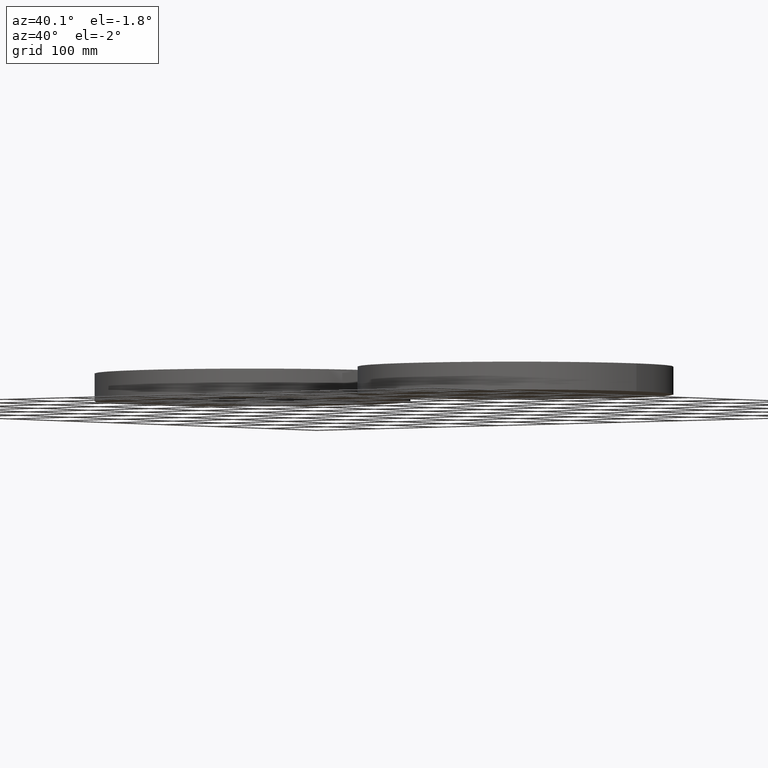
[diagram: clean part render]
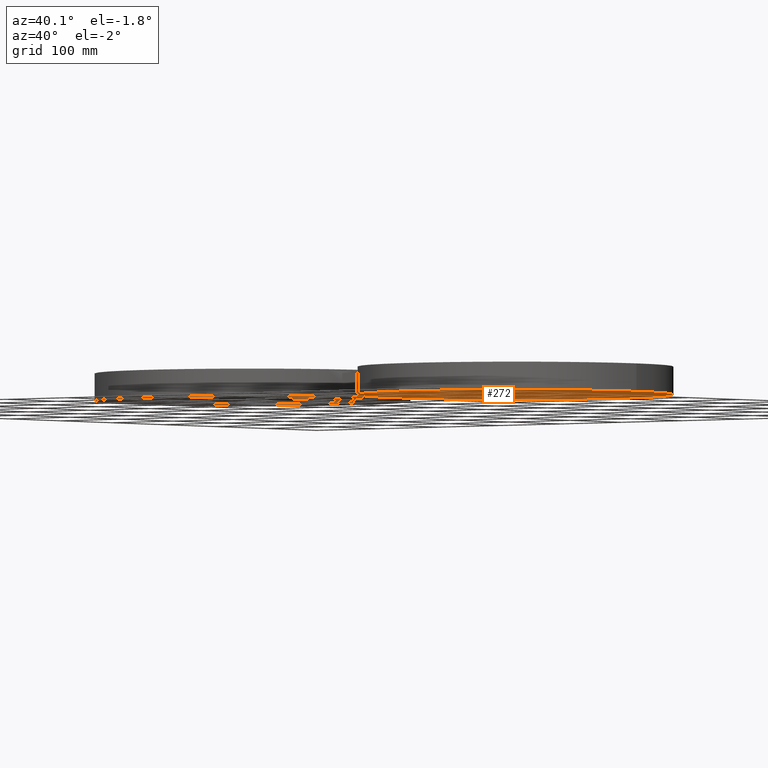
[diagram: same view with one face highlighted and labeled with its STEP entity id]
A machine part, auxiliary view. The second image highlights one B-rep face of the part: STEP entity #272.
In plain terms, the highlighted planar face has unit normal (0, 0, 1).
Its self-contained STEP definition (entity closure, byte-faithful):
#252=AXIS2_PLACEMENT_3D('Plane Axis2P3D',#249,#250,#251) ;
#256=AXIS2_PLACEMENT_3D('Circle Axis2P3D',#254,#255,$) ;
#265=AXIS2_PLACEMENT_3D('Circle Axis2P3D',#263,#264,$) ;
#249=CARTESIAN_POINT('Axis2P3D Location',(0.,0.,-0.690000000003)) ;
#254=CARTESIAN_POINT('Axis2P3D Location',(17.0000000001,2.08189955856E-015,-0.690000000003)) ;
#258=CARTESIAN_POINT('Vertex',(24.8100000001,1.69001258283E-016,-0.690000000003)) ;
#260=CARTESIAN_POINT('Vertex',(9.19000000004,3.0383487087E-015,-0.690000000003)) ;
#263=CARTESIAN_POINT('Axis2P3D Location',(17.0000000001,2.08189955856E-015,-0.690000000003)) ;
#250=DIRECTION('Axis2P3D Direction',(0.,0.,0.0393700787402)) ;
#251=DIRECTION('Axis2P3D XDirection',(0.0393700787402,0.,0.)) ;
#255=DIRECTION('Axis2P3D Direction',(0.,0.,0.0393700787402)) ;
#264=DIRECTION('Axis2P3D Direction',(0.,0.,0.0393700787402)) ;
#269=ORIENTED_EDGE('',*,*,#262,.F.) ;
#270=ORIENTED_EDGE('',*,*,#267,.F.) ;
#272=ADVANCED_FACE('PartBody',(#271),#253,.F.) ;
#257=CIRCLE('generated circle',#256,7.81000000003) ;
#266=CIRCLE('generated circle',#265,7.81000000003) ;
#262=EDGE_CURVE('',#259,#261,#257,.T.) ;
#267=EDGE_CURVE('',#261,#259,#266,.T.) ;
#268=EDGE_LOOP('',(#269,#270)) ;
#271=FACE_OUTER_BOUND('',#268,.T.) ;
#253=PLANE('',#252) ;
#259=VERTEX_POINT('',#258) ;
#261=VERTEX_POINT('',#260) ;